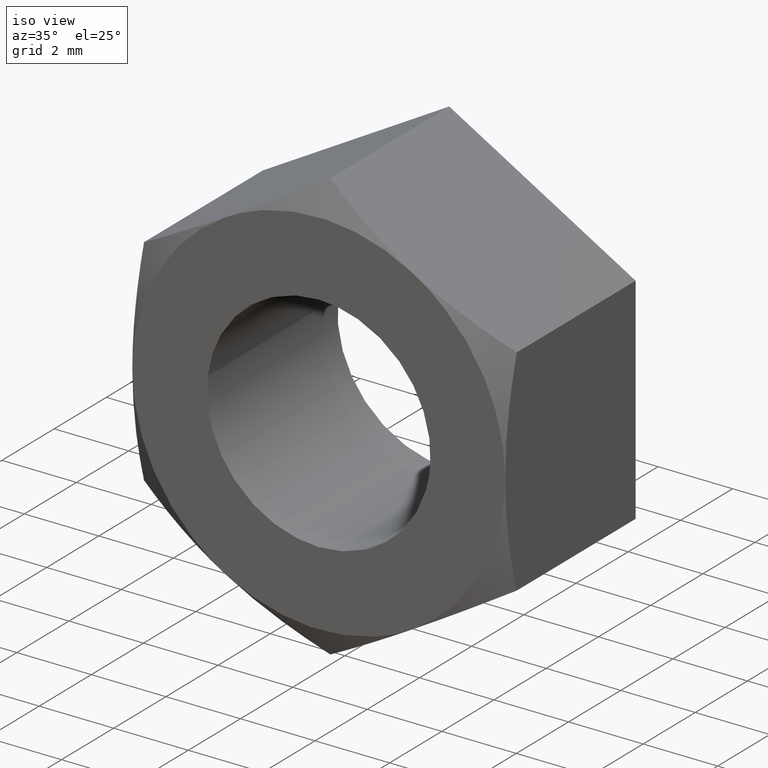
[diagram: clean part render]
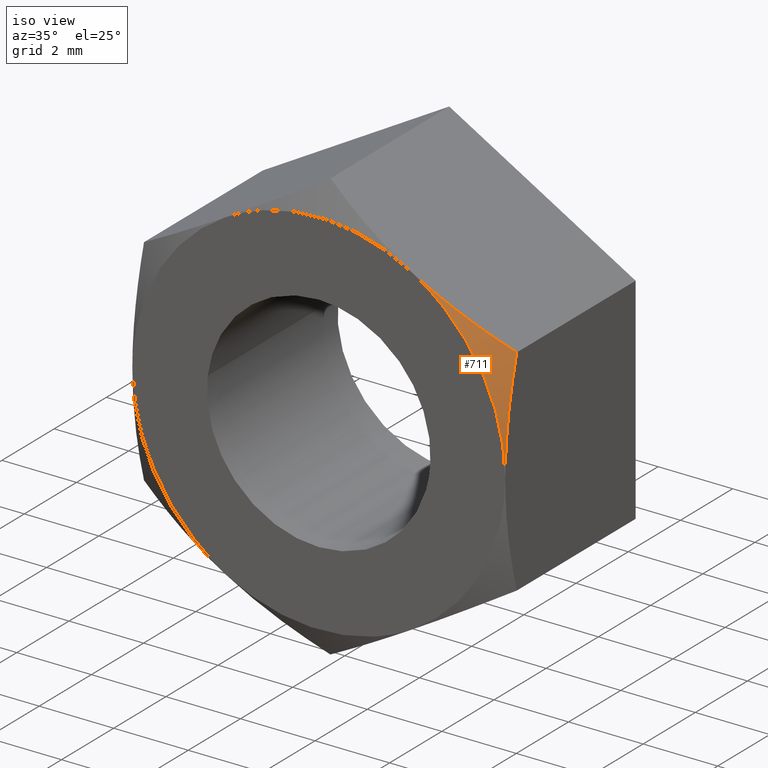
[diagram: same view with one face highlighted and labeled with its STEP entity id]
A machine part, iso view. The second image highlights one B-rep face of the part: STEP entity #711.
In plain terms, the highlighted face is a freeform B-spline surface patch.
Its self-contained STEP definition (entity closure, byte-faithful):
#387=CARTESIAN_POINT('',(5.000005404466170,-4.553409602993680,2.886752120267455));
#388=VERTEX_POINT('',#387);
#389=CARTESIAN_POINT('',(5.0,-5.0,-8.673617E-016));
#390=VERTEX_POINT('',#389);
#391=CARTESIAN_POINT('',(5.000005404466170,-4.553409602993680,2.886752120267455));
#392=CARTESIAN_POINT('',(5.000004513169780,-4.688116607231213,2.420118757533514));
#393=CARTESIAN_POINT('',(5.000003617053969,-4.800307397922206,1.947366246797333));
#394=CARTESIAN_POINT('',(5.000002487831893,-4.898136896506681,1.344900274219635));
#395=CARTESIAN_POINT('',(5.000002261531787,-4.915573824749347,1.223828497007833));
#396=CARTESIAN_POINT('',(5.000001807941939,-4.945824113510175,0.980428412699836));
#397=CARTESIAN_POINT('',(5.000001580304323,-4.958651955178178,0.857912085975823));
#398=CARTESIAN_POINT('',(5.000000898153133,-4.989584399491625,0.489611514541412));
#399=CARTESIAN_POINT('',(5.000000447689589,-4.999974933069924,0.244848958079583));
#400=CARTESIAN_POINT('',(5.000000001057662,-4.999999984358408,0.000578459506291));
#401=CARTESIAN_POINT('',(5.000000000528828,-4.999999999459415,0.000289229204407));
#402=CARTESIAN_POINT('',(5.0,-5.0,-8.673617E-016));
#403=B_SPLINE_CURVE_WITH_KNOTS('',3,(#391,#392,#393,#394,#395,#396,#397,#398,#399,#400,#401,#402),.UNSPECIFIED.,.F.,.U.,(4,2,2,2,2,4),(0.499851816799926,0.749851816799926,0.812351816799926,0.874851816799926,0.999851816799926,1.0),.UNSPECIFIED.);
#404=EDGE_CURVE('',#388,#390,#403,.T.);
#436=CARTESIAN_POINT('',(2.500000000000000,-5.0,4.330127018922216));
#437=VERTEX_POINT('',#436);
#451=CARTESIAN_POINT('',(2.500000000000000,-5.0,4.330127018922216));
#452=CARTESIAN_POINT('',(2.604697440279250,-4.999999180454779,4.269680082882529));
#453=CARTESIAN_POINT('',(2.709902559407321,-4.997448956423985,4.208940039614859));
#454=CARTESIAN_POINT('',(2.920964148095943,-4.987251170578753,4.087083897761970));
#455=CARTESIAN_POINT('',(3.026921597387174,-4.979538577819586,4.025909498668955));
#456=CARTESIAN_POINT('',(3.343733640387951,-4.949009447837367,3.842998468587121));
#457=CARTESIAN_POINT('',(3.553525450335410,-4.918784278651589,3.721875435982623));
#458=CARTESIAN_POINT('',(4.179165787010449,-4.802071554860436,3.360662794839334));
#459=CARTESIAN_POINT('',(4.591293774645260,-4.689648240014399,3.122721240173330));
#460=CARTESIAN_POINT('',(5.000005404466170,-4.553409602993680,2.886752120267455));
#461=B_SPLINE_CURVE_WITH_KNOTS('',3,(#451,#452,#453,#454,#455,#456,#457,#458,#459,#460),.UNSPECIFIED.,.F.,.U.,(4,2,2,2,4),(0.500935885172205,0.562500000000000,0.625000000000000,0.750000000000000,1.0),.UNSPECIFIED.);
#462=EDGE_CURVE('',#437,#388,#461,.T.);
#578=CARTESIAN_POINT('',(5.0,-5.0,-8.673617E-016));
#579=CARTESIAN_POINT('',(4.999998535914707,-5.0,2.886750500658105));
#580=CARTESIAN_POINT('',(2.500000000000000,-5.0,4.330127018922216));
#588=(BOUNDED_CURVE()B_SPLINE_CURVE(2,(#578,#579,#580),.UNSPECIFIED.,.F.,.U.)CURVE()GEOMETRIC_REPRESENTATION_ITEM()QUASI_UNIFORM_CURVE()RATIONAL_B_SPLINE_CURVE((1.0,0.866025403784438,1.0))REPRESENTATION_ITEM(''));
#589=EDGE_CURVE('',#390,#437,#588,.T.);
#692=CARTESIAN_POINT('',(4.975915822086090,-5.011164759925159,-0.217253176625656));
#693=CARTESIAN_POINT('',(5.787815080311156,-4.541965724070393,-0.252701463786482));
#694=CARTESIAN_POINT('',(5.115272672279277,-5.011164759925161,2.974543447767090));
#695=CARTESIAN_POINT('',(5.949910201678112,-4.541965724070393,3.459887192546894));
#696=CARTESIAN_POINT('',(2.272300674536629,-5.011164759925158,4.432108624090908));
#697=CARTESIAN_POINT('',(2.643062419325787,-4.541965724070393,5.155277148827674));
#705=(BOUNDED_SURFACE()B_SPLINE_SURFACE(1,2,((#692,#694,#696),(#693,#695,#697)),.UNSPECIFIED.,.F.,.F.,.U.)B_SPLINE_SURFACE_WITH_KNOTS((2,2),(3,3),(0.0,1.0),(0.0,6.793468057053423),.UNSPECIFIED.)GEOMETRIC_REPRESENTATION_ITEM()RATIONAL_B_SPLINE_SURFACE(((1.0,0.838184844644944,0.991624471613989),(1.0,0.838184844644944,0.991624471613989)))REPRESENTATION_ITEM('')SURFACE());
#706=ORIENTED_EDGE('',*,*,#462,.F.);
#707=ORIENTED_EDGE('',*,*,#589,.F.);
#708=ORIENTED_EDGE('',*,*,#404,.F.);
#709=EDGE_LOOP('',(#706,#707,#708));
#710=FACE_OUTER_BOUND('',#709,.T.);
#711=ADVANCED_FACE('',(#710),#705,.T.);